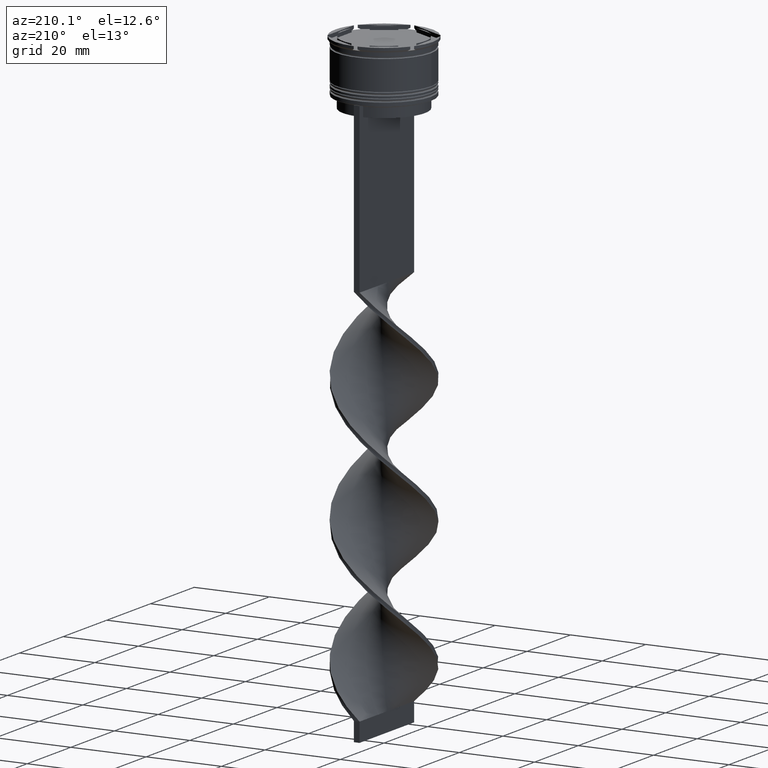
[diagram: clean part render]
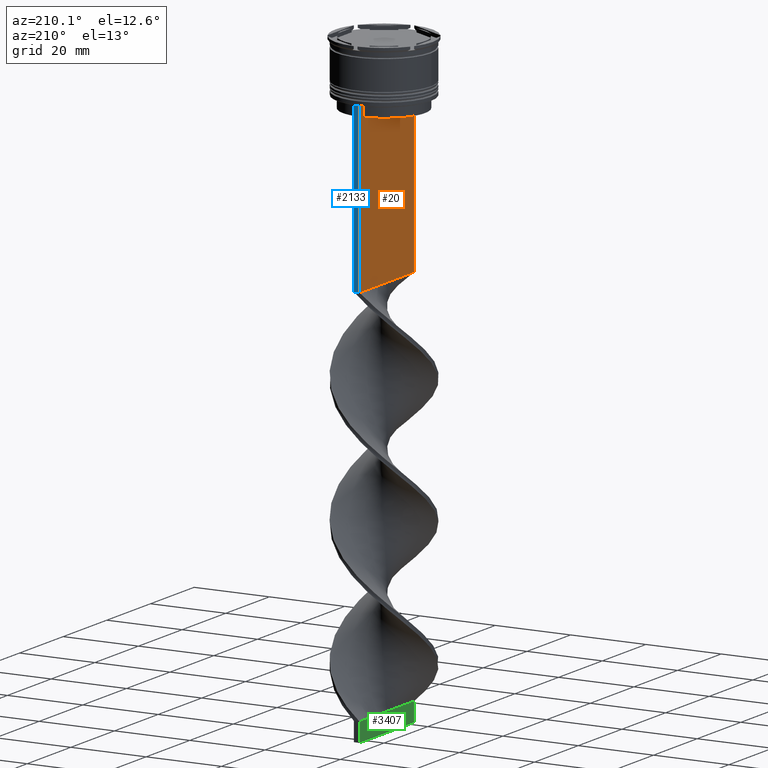
[diagram: same view with three faces highlighted in distinct colors, each labeled with its STEP entity id]
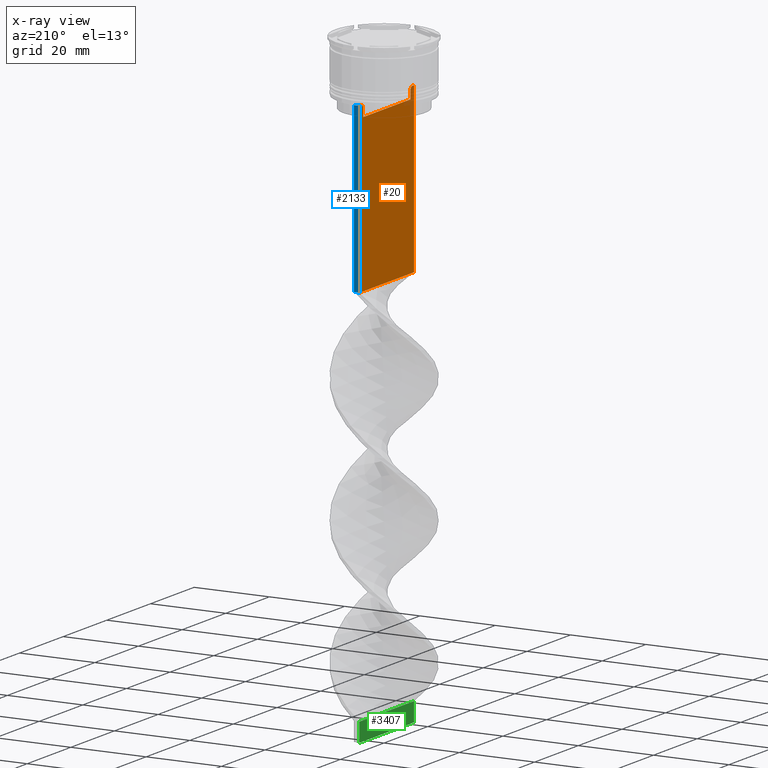
[diagram: x-ray of the same camera — body ghosted, the three highlighted faces saturated]
A machine part, auxiliary view with three faces highlighted in distinct colors.
The next image is the same camera in x-ray (body ghosted, the three faces saturated) — at least one of them is partly hidden behind the body in this view.
Their STEP definitions:

[orange] entity #20 — the highlighted planar face has unit normal (-1, 0, 0).
#20 = ADVANCED_FACE ( 'NONE', ( #554 ), #1163, .T. ) ;
#55 = EDGE_LOOP ( 'NONE', ( #1769, #3784, #2205, #806, #2937, #3359, #859, #2680, #2365, #2080, #2490, #1753 ) ) ;
#98 = VECTOR ( 'NONE', #3699, 1000.000000000000000 ) ;
#102 = EDGE_CURVE ( 'NONE', #3868, #2582, #3718, .T. ) ;
#113 = LINE ( 'NONE', #2052, #1904 ) ;
#163 = VECTOR ( 'NONE', #2687, 1000.000000000000000 ) ;
#186 = B_SPLINE_CURVE_WITH_KNOTS ( 'NONE', 3,
 ( #3391, #1749, #1436, #3677 ),
 .UNSPECIFIED., .F., .F.,
 ( 4, 4 ),
 ( 0.01936090553552769281, 0.02006881572333104116 ),
 .UNSPECIFIED. ) ;
#249 = DIRECTION ( 'NONE',  ( 0.000000000000000000, -1.000000000000000000, 0.000000000000000000 ) ) ;
#328 = VERTEX_POINT ( 'NONE', #3933 ) ;
#351 = VECTOR ( 'NONE', #3953, 1000.000000000000000 ) ;
#443 = CARTESIAN_POINT ( 'NONE',  ( -0.7499999999999997780, -11.37530219378809093, -14.00000000000000178 ) ) ;
#468 = CARTESIAN_POINT ( 'NONE',  ( -0.7499999999999997780, -11.04122051801870619, -14.33334204001847745 ) ) ;
#478 = VERTEX_POINT ( 'NONE', #669 ) ;
#552 = CARTESIAN_POINT ( 'NONE',  ( -0.7499999999999997780, -12.50000000000000000, -58.00000000000000000 ) ) ;
#554 = FACE_OUTER_BOUND ( 'NONE', #55, .T. ) ;
#555 = VECTOR ( 'NONE', #3060, 1000.000000000000000 ) ;
#572 = LINE ( 'NONE', #651, #2508 ) ;
#615 = EDGE_CURVE ( 'NONE', #938, #1824, #2440, .T. ) ;
#651 = CARTESIAN_POINT ( 'NONE',  ( -0.7499999999999997780, -12.50000000000000000, 11.04495957273638673 ) ) ;
#669 = CARTESIAN_POINT ( 'NONE',  ( -0.7499999999999997780, -12.50000000000000000, -14.00000000000000178 ) ) ;
#718 = CARTESIAN_POINT ( 'NONE',  ( -0.7499999999999997780, -12.50000000000000000, -58.00000000000000000 ) ) ;
#754 = DIRECTION ( 'NONE',  ( 0.000000000000000000, 1.000000000000000000, 0.000000000000000000 ) ) ;
#806 = ORIENTED_EDGE ( 'NONE', *, *, #3205, .T. ) ;
#844 = LINE ( 'NONE', #2127, #2394 ) ;
#859 = ORIENTED_EDGE ( 'NONE', *, *, #3888, .F. ) ;
#893 = LINE ( 'NONE', #918, #98 ) ;
#918 = CARTESIAN_POINT ( 'NONE',  ( -0.7499999999999997780, 12.50000000000000000, 11.04495957273638673 ) ) ;
#938 = VERTEX_POINT ( 'NONE', #1283 ) ;
#1041 = VERTEX_POINT ( 'NONE', #2059 ) ;
#1078 = EDGE_CURVE ( 'NONE', #1824, #2961, #3574, .T. ) ;
#1143 = CARTESIAN_POINT ( 'NONE',  ( -0.7499999999999997780, 10.87416663473574019, -17.00000000000000000 ) ) ;
#1163 = PLANE ( 'NONE',  #1560 ) ;
#1283 = CARTESIAN_POINT ( 'NONE',  ( -0.7499999999999997780, 12.50000000000000000, -14.00000000000000178 ) ) ;
#1358 = EDGE_CURVE ( 'NONE', #2961, #3868, #186, .T. ) ;
#1385 = EDGE_CURVE ( 'NONE', #1917, #328, #3367, .T. ) ;
#1430 = CARTESIAN_POINT ( 'NONE',  ( -0.7499999999999997780, -11.37530219378809093, -14.00000000000000178 ) ) ;
#1436 = CARTESIAN_POINT ( 'NONE',  ( -0.7499999999999997780, 11.04122051153452055, -14.33334204648729582 ) ) ;
#1473 = DIRECTION ( 'NONE',  ( -1.000000000000000000, 0.000000000000000000, 0.000000000000000000 ) ) ;
#1494 = CARTESIAN_POINT ( 'NONE',  ( -0.7499999999999997780, 10.87416663473574374, 0.000000000000000000 ) ) ;
#1560 = AXIS2_PLACEMENT_3D ( 'NONE', #2510, #1473, #3095 ) ;
#1642 = DIRECTION ( 'NONE',  ( 0.000000000000000000, -1.000000000000000000, 0.000000000000000000 ) ) ;
#1723 = CARTESIAN_POINT ( 'NONE',  ( -0.7499999999999997780, 11.37530219378809093, -14.00000000000000178 ) ) ;
#1749 = CARTESIAN_POINT ( 'NONE',  ( -0.7499999999999997780, 11.20826531587977648, -14.16667499681701514 ) ) ;
#1753 = ORIENTED_EDGE ( 'NONE', *, *, #102, .F. ) ;
#1769 = ORIENTED_EDGE ( 'NONE', *, *, #1358, .F. ) ;
#1771 = CARTESIAN_POINT ( 'NONE',  ( -0.7499999999999997780, -10.87416663473574374, 0.000000000000000000 ) ) ;
#1776 = B_SPLINE_CURVE_WITH_KNOTS ( 'NONE', 3,
 ( #3990, #468, #2722, #1430 ),
 .UNSPECIFIED., .F., .F.,
 ( 4, 4 ),
 ( 0.05009718908159448147, 0.05081156920313960323 ),
 .UNSPECIFIED. ) ;
#1824 = VERTEX_POINT ( 'NONE', #2007 ) ;
#1904 = VECTOR ( 'NONE', #1642, 1000.000000000000000 ) ;
#1917 = VERTEX_POINT ( 'NONE', #3361 ) ;
#2007 = CARTESIAN_POINT ( 'NONE',  ( -0.7499999999999997780, 12.37729776647553059, -14.00000000000000178 ) ) ;
#2052 = CARTESIAN_POINT ( 'NONE',  ( -0.7499999999999997780, 10.90000000000000213, -17.00000000000000000 ) ) ;
#2059 = CARTESIAN_POINT ( 'NONE',  ( -0.7499999999999997780, 12.50000000000000000, -58.00000000000000000 ) ) ;
#2080 = ORIENTED_EDGE ( 'NONE', *, *, #1385, .F. ) ;
#2114 = EDGE_CURVE ( 'NONE', #478, #3334, #572, .T. ) ;
#2127 = CARTESIAN_POINT ( 'NONE',  ( -0.7499999999999997780, -12.50000000000000000, -14.00000000000000178 ) ) ;
#2205 = ORIENTED_EDGE ( 'NONE', *, *, #615, .F. ) ;
#2365 = ORIENTED_EDGE ( 'NONE', *, *, #2746, .F. ) ;
#2394 = VECTOR ( 'NONE', #249, 1000.000000000000000 ) ;
#2395 = CARTESIAN_POINT ( 'NONE',  ( -0.7499999999999997780, -12.50000000000000000, -14.00000000000000178 ) ) ;
#2403 = CARTESIAN_POINT ( 'NONE',  ( -0.7499999999999997780, -12.50000000000000000, -14.00000000000000178 ) ) ;
#2440 = LINE ( 'NONE', #2403, #163 ) ;
#2459 = VECTOR ( 'NONE', #754, 1000.000000000000000 ) ;
#2490 = ORIENTED_EDGE ( 'NONE', *, *, #2955, .F. ) ;
#2508 = VECTOR ( 'NONE', #4122, 1000.000000000000000 ) ;
#2510 = CARTESIAN_POINT ( 'NONE',  ( -0.7499999999999997780, -12.50000000000000000, 11.04495957273638673 ) ) ;
#2523 = CARTESIAN_POINT ( 'NONE',  ( -0.7499999999999997780, 10.87416663473574374, -14.50000000000000000 ) ) ;
#2582 = VERTEX_POINT ( 'NONE', #1143 ) ;
#2680 = ORIENTED_EDGE ( 'NONE', *, *, #3515, .F. ) ;
#2687 = DIRECTION ( 'NONE',  ( 0.000000000000000000, -1.000000000000000000, 0.000000000000000000 ) ) ;
#2722 = CARTESIAN_POINT ( 'NONE',  ( -0.7499999999999997780, -11.20826532207830439, -14.16667499063191471 ) ) ;
#2746 = EDGE_CURVE ( 'NONE', #328, #4052, #1776, .T. ) ;
#2937 = ORIENTED_EDGE ( 'NONE', *, *, #3728, .F. ) ;
#2955 = EDGE_CURVE ( 'NONE', #2582, #1917, #113, .T. ) ;
#2961 = VERTEX_POINT ( 'NONE', #1723 ) ;
#2981 = VECTOR ( 'NONE', #4050, 1000.000000000000000 ) ;
#3060 = DIRECTION ( 'NONE',  ( -0.000000000000000000, -0.000000000000000000, 1.000000000000000000 ) ) ;
#3095 = DIRECTION ( 'NONE',  ( 0.000000000000000000, 0.000000000000000000, 1.000000000000000000 ) ) ;
#3165 = DIRECTION ( 'NONE',  ( 0.000000000000000000, -1.000000000000000000, 0.000000000000000000 ) ) ;
#3205 = EDGE_CURVE ( 'NONE', #938, #1041, #893, .T. ) ;
#3334 = VERTEX_POINT ( 'NONE', #552 ) ;
#3359 = ORIENTED_EDGE ( 'NONE', *, *, #2114, .F. ) ;
#3361 = CARTESIAN_POINT ( 'NONE',  ( -0.7499999999999997780, -10.87416663473574019, -17.00000000000000000 ) ) ;
#3367 = LINE ( 'NONE', #1771, #555 ) ;
#3391 = CARTESIAN_POINT ( 'NONE',  ( -0.7499999999999997780, 11.37530219378809093, -14.00000000000000178 ) ) ;
#3515 = EDGE_CURVE ( 'NONE', #4052, #4133, #4123, .T. ) ;
#3543 = CARTESIAN_POINT ( 'NONE',  ( -0.7499999999999997780, -12.50000000000000000, -14.00000000000000178 ) ) ;
#3574 = LINE ( 'NONE', #2395, #351 ) ;
#3588 = LINE ( 'NONE', #718, #2459 ) ;
#3647 = VECTOR ( 'NONE', #3165, 1000.000000000000000 ) ;
#3677 = CARTESIAN_POINT ( 'NONE',  ( -0.7499999999999997780, 10.87416663473574374, -14.50000000000000000 ) ) ;
#3699 = DIRECTION ( 'NONE',  ( 0.000000000000000000, 0.000000000000000000, -1.000000000000000000 ) ) ;
#3718 = LINE ( 'NONE', #1494, #2981 ) ;
#3721 = CARTESIAN_POINT ( 'NONE',  ( -0.7499999999999997780, -12.37729776647553059, -14.00000000000000178 ) ) ;
#3728 = EDGE_CURVE ( 'NONE', #3334, #1041, #3588, .T. ) ;
#3784 = ORIENTED_EDGE ( 'NONE', *, *, #1078, .F. ) ;
#3868 = VERTEX_POINT ( 'NONE', #2523 ) ;
#3888 = EDGE_CURVE ( 'NONE', #4133, #478, #844, .T. ) ;
#3933 = CARTESIAN_POINT ( 'NONE',  ( -0.7499999999999997780, -10.87416663473574374, -14.50000000000000000 ) ) ;
#3953 = DIRECTION ( 'NONE',  ( 0.000000000000000000, -1.000000000000000000, 0.000000000000000000 ) ) ;
#3990 = CARTESIAN_POINT ( 'NONE',  ( -0.7499999999999997780, -10.87416663473574374, -14.50000000000000000 ) ) ;
#4050 = DIRECTION ( 'NONE',  ( 0.000000000000000000, 0.000000000000000000, -1.000000000000000000 ) ) ;
#4052 = VERTEX_POINT ( 'NONE', #443 ) ;
#4122 = DIRECTION ( 'NONE',  ( 0.000000000000000000, 0.000000000000000000, -1.000000000000000000 ) ) ;
#4123 = LINE ( 'NONE', #3543, #3647 ) ;
#4133 = VERTEX_POINT ( 'NONE', #3721 ) ;

[blue] entity #2133 — the highlighted planar face has unit normal (0, -1, -0).
#98 = VECTOR ( 'NONE', #3699, 1000.000000000000000 ) ;
#221 = AXIS2_PLACEMENT_3D ( 'NONE', #3163, #1525, #2794 ) ;
#229 = VECTOR ( 'NONE', #4000, 1000.000000000000000 ) ;
#761 = CARTESIAN_POINT ( 'NONE',  ( 0.7500000000000002220, 12.50000000000000000, -58.00000000000000000 ) ) ;
#893 = LINE ( 'NONE', #918, #98 ) ;
#918 = CARTESIAN_POINT ( 'NONE',  ( -0.7499999999999997780, 12.50000000000000000, 11.04495957273638673 ) ) ;
#938 = VERTEX_POINT ( 'NONE', #1283 ) ;
#1041 = VERTEX_POINT ( 'NONE', #2059 ) ;
#1255 = FACE_OUTER_BOUND ( 'NONE', #1842, .T. ) ;
#1283 = CARTESIAN_POINT ( 'NONE',  ( -0.7499999999999997780, 12.50000000000000000, -14.00000000000000178 ) ) ;
#1444 = LINE ( 'NONE', #2733, #229 ) ;
#1525 = DIRECTION ( 'NONE',  ( 0.000000000000000000, -1.000000000000000000, -0.000000000000000000 ) ) ;
#1543 = ORIENTED_EDGE ( 'NONE', *, *, #1612, .T. ) ;
#1576 = DIRECTION ( 'NONE',  ( 1.000000000000000000, 0.000000000000000000, 0.000000000000000000 ) ) ;
#1593 = PLANE ( 'NONE',  #221 ) ;
#1612 = EDGE_CURVE ( 'NONE', #938, #4040, #1616, .T. ) ;
#1616 = LINE ( 'NONE', #2256, #3434 ) ;
#1764 = LINE ( 'NONE', #3420, #3306 ) ;
#1842 = EDGE_LOOP ( 'NONE', ( #3352, #1543, #3753, #3475 ) ) ;
#1927 = EDGE_CURVE ( 'NONE', #2647, #1041, #1764, .T. ) ;
#2059 = CARTESIAN_POINT ( 'NONE',  ( -0.7499999999999997780, 12.50000000000000000, -58.00000000000000000 ) ) ;
#2067 = CARTESIAN_POINT ( 'NONE',  ( 0.7500000000000002220, 12.50000000000000000, -14.00000000000000178 ) ) ;
#2133 = ADVANCED_FACE ( 'NONE', ( #1255 ), #1593, .F. ) ;
#2256 = CARTESIAN_POINT ( 'NONE',  ( 0.7500000000000002220, 12.50000000000000000, -14.00000000000000178 ) ) ;
#2647 = VERTEX_POINT ( 'NONE', #761 ) ;
#2733 = CARTESIAN_POINT ( 'NONE',  ( 0.7500000000000002220, 12.50000000000000000, 11.04495957273638673 ) ) ;
#2739 = DIRECTION ( 'NONE',  ( -1.000000000000000000, 0.000000000000000000, 0.000000000000000000 ) ) ;
#2794 = DIRECTION ( 'NONE',  ( 0.000000000000000000, 0.000000000000000000, -1.000000000000000000 ) ) ;
#3152 = EDGE_CURVE ( 'NONE', #4040, #2647, #1444, .T. ) ;
#3163 = CARTESIAN_POINT ( 'NONE',  ( 0.7500000000000002220, 12.50000000000000000, 11.04495957273638673 ) ) ;
#3205 = EDGE_CURVE ( 'NONE', #938, #1041, #893, .T. ) ;
#3306 = VECTOR ( 'NONE', #2739, 1000.000000000000000 ) ;
#3352 = ORIENTED_EDGE ( 'NONE', *, *, #3205, .F. ) ;
#3420 = CARTESIAN_POINT ( 'NONE',  ( 0.7500000000000002220, 12.50000000000000000, -58.00000000000000000 ) ) ;
#3434 = VECTOR ( 'NONE', #1576, 1000.000000000000000 ) ;
#3475 = ORIENTED_EDGE ( 'NONE', *, *, #1927, .T. ) ;
#3699 = DIRECTION ( 'NONE',  ( 0.000000000000000000, 0.000000000000000000, -1.000000000000000000 ) ) ;
#3753 = ORIENTED_EDGE ( 'NONE', *, *, #3152, .T. ) ;
#4000 = DIRECTION ( 'NONE',  ( 0.000000000000000000, 0.000000000000000000, -1.000000000000000000 ) ) ;
#4040 = VERTEX_POINT ( 'NONE', #2067 ) ;

[green] entity #3407 — the highlighted planar face has unit normal (1, -0, 0).
#61 = DIRECTION ( 'NONE',  ( -0.000000000000000000, -0.000000000000000000, 1.000000000000000000 ) ) ;
#114 = DIRECTION ( 'NONE',  ( 1.214306433183764966E-16, 1.000000000000000000, 0.000000000000000000 ) ) ;
#167 = CARTESIAN_POINT ( 'NONE',  ( -0.7500000000000017764, -12.50000000000000000, -164.0000000000000000 ) ) ;
#214 = CARTESIAN_POINT ( 'NONE',  ( -0.7500000000000017764, -12.50000000000000000, -164.0000000000000000 ) ) ;
#260 = B_SPLINE_CURVE_WITH_KNOTS ( 'NONE', 3,
 ( #323, #1896, #4128, #3509 ),
 .UNSPECIFIED., .F., .F.,
 ( 4, 4 ),
 ( 0.000000000000000000, 1.000000000000000000 ),
 .UNSPECIFIED. ) ;
#323 = CARTESIAN_POINT ( 'NONE',  ( -0.7500000000000017764, -12.50000000000000000, -159.0000000000000000 ) ) ;
#486 = VECTOR ( 'NONE', #3251, 1000.000000000000000 ) ;
#540 = EDGE_CURVE ( 'NONE', #664, #3414, #715, .T. ) ;
#664 = VERTEX_POINT ( 'NONE', #167 ) ;
#715 = LINE ( 'NONE', #2942, #486 ) ;
#771 = AXIS2_PLACEMENT_3D ( 'NONE', #214, #2784, #4049 ) ;
#995 = CARTESIAN_POINT ( 'NONE',  ( -0.7500000000000017764, -12.50000000000000000, -159.0000000000000000 ) ) ;
#1053 = CARTESIAN_POINT ( 'NONE',  ( -0.7499999999999986677, 12.50000000000000000, -164.0000000000000000 ) ) ;
#1276 = EDGE_LOOP ( 'NONE', ( #2359, #1605, #3962, #1932 ) ) ;
#1605 = ORIENTED_EDGE ( 'NONE', *, *, #2392, .F. ) ;
#1826 = CARTESIAN_POINT ( 'NONE',  ( -0.7499999999999986677, 12.50000000000000000, -164.0000000000000000 ) ) ;
#1896 = CARTESIAN_POINT ( 'NONE',  ( -0.7500000000000007772, -4.166666666666667851, -159.0000000000000000 ) ) ;
#1932 = ORIENTED_EDGE ( 'NONE', *, *, #540, .T. ) ;
#2009 = LINE ( 'NONE', #3278, #3052 ) ;
#2012 = VERTEX_POINT ( 'NONE', #1826 ) ;
#2187 = CARTESIAN_POINT ( 'NONE',  ( -0.7499999999999986677, 12.50000000000000000, -159.0000000000000000 ) ) ;
#2359 = ORIENTED_EDGE ( 'NONE', *, *, #3453, .T. ) ;
#2392 = EDGE_CURVE ( 'NONE', #2012, #3976, #3562, .T. ) ;
#2732 = EDGE_CURVE ( 'NONE', #664, #2012, #2009, .T. ) ;
#2784 = DIRECTION ( 'NONE',  ( 1.000000000000000000, -1.214306433183764966E-16, 0.000000000000000000 ) ) ;
#2942 = CARTESIAN_POINT ( 'NONE',  ( -0.7500000000000017764, -12.50000000000000000, -164.0000000000000000 ) ) ;
#3052 = VECTOR ( 'NONE', #114, 1000.000000000000000 ) ;
#3094 = PLANE ( 'NONE',  #771 ) ;
#3251 = DIRECTION ( 'NONE',  ( -0.000000000000000000, -0.000000000000000000, 1.000000000000000000 ) ) ;
#3278 = CARTESIAN_POINT ( 'NONE',  ( -0.7500000000000017764, -12.50000000000000000, -164.0000000000000000 ) ) ;
#3407 = ADVANCED_FACE ( 'NONE', ( #3717 ), #3094, .F. ) ;
#3414 = VERTEX_POINT ( 'NONE', #995 ) ;
#3453 = EDGE_CURVE ( 'NONE', #3414, #3976, #260, .T. ) ;
#3509 = CARTESIAN_POINT ( 'NONE',  ( -0.7499999999999986677, 12.50000000000000000, -159.0000000000000000 ) ) ;
#3562 = LINE ( 'NONE', #1053, #3700 ) ;
#3700 = VECTOR ( 'NONE', #61, 1000.000000000000000 ) ;
#3717 = FACE_OUTER_BOUND ( 'NONE', #1276, .T. ) ;
#3962 = ORIENTED_EDGE ( 'NONE', *, *, #2732, .F. ) ;
#3976 = VERTEX_POINT ( 'NONE', #2187 ) ;
#4049 = DIRECTION ( 'NONE',  ( 1.214306433183764966E-16, 1.000000000000000000, 0.000000000000000000 ) ) ;
#4128 = CARTESIAN_POINT ( 'NONE',  ( -0.7499999999999996669, 4.166666666666667851, -159.0000000000000000 ) ) ;